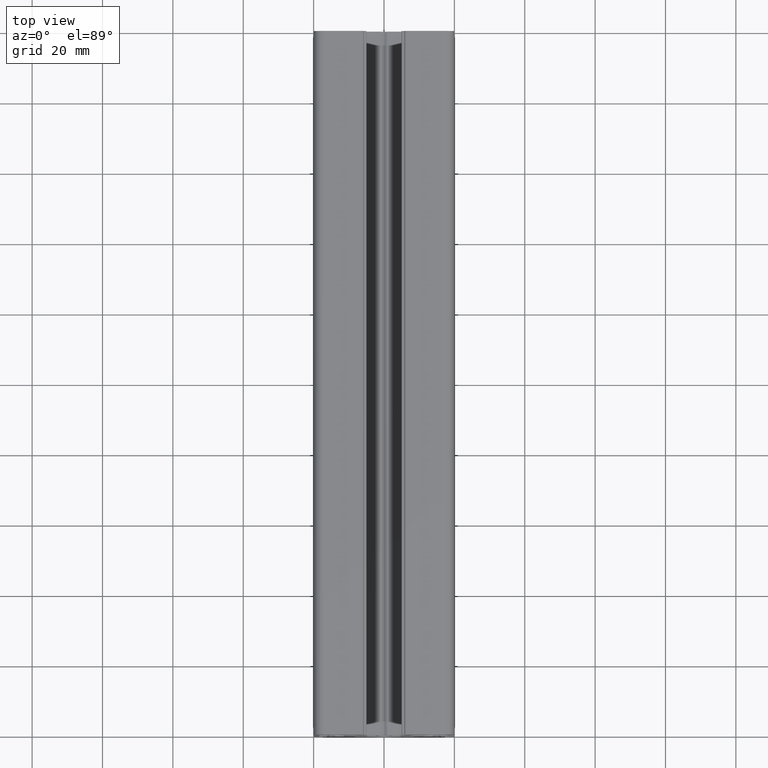
[diagram: clean part render]
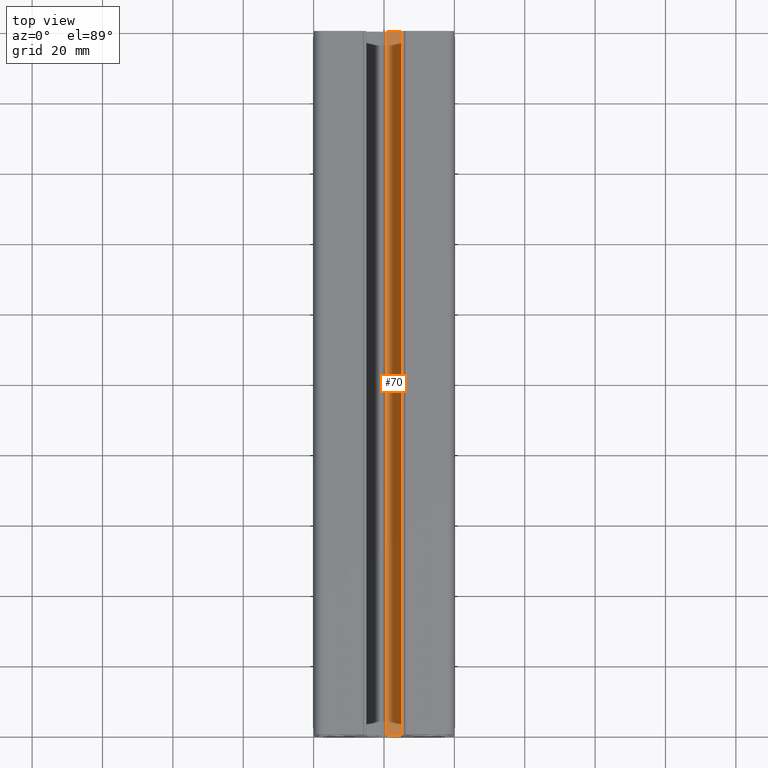
[diagram: same view with one face highlighted and labeled with its STEP entity id]
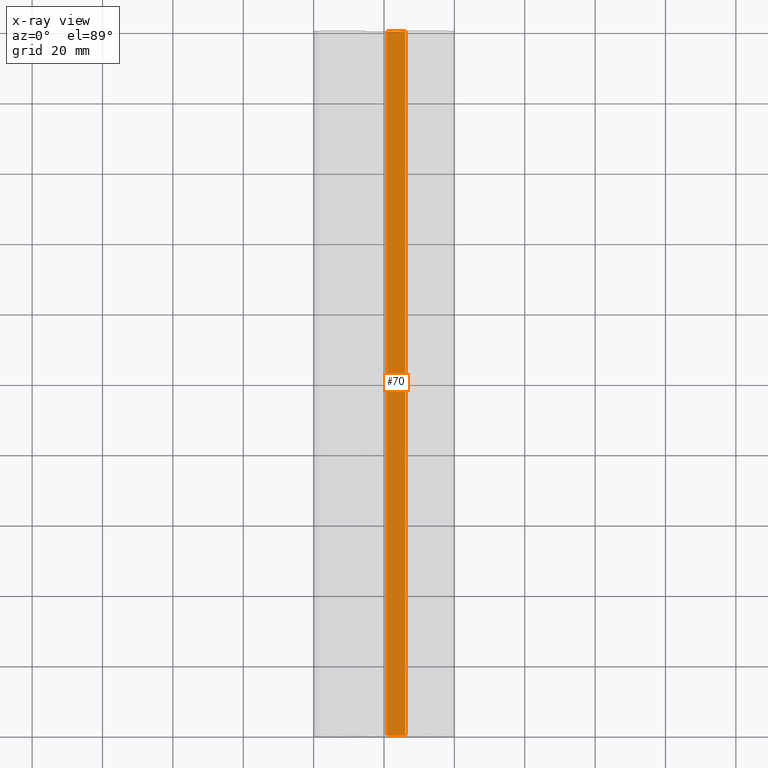
[diagram: x-ray of the same camera — body ghosted, the highlighted face saturated]
A machine part, top view. The second image highlights one B-rep face of the part: STEP entity #70.
The next image is the same camera in x-ray: the body ghosted, the highlighted face saturated — about 0% of this face is hidden behind the body in this view.
In plain terms, the highlighted planar face has unit normal (0, -0, 1).
Its self-contained STEP definition (entity closure, byte-faithful):
#44 = VERTEX_POINT ( 'NONE', #4011 ) ;
#55 = EDGE_CURVE ( 'NONE', #44, #918, #1239, .T. ) ;
#70 = ADVANCED_FACE ( 'NONE', ( #3280 ), #1368, .T. ) ;
#109 = ORIENTED_EDGE ( 'NONE', *, *, #4029, .T. ) ;
#199 = CARTESIAN_POINT ( 'NONE',  ( 2.664535259100380100E-014, 200.0000000000000000, 7.499889978929809700 ) ) ;
#225 = LINE ( 'NONE', #199, #2042 ) ;
#561 = VECTOR ( 'NONE', #5580, 1000.000000000000000 ) ;
#713 = ORIENTED_EDGE ( 'NONE', *, *, #1548, .F. ) ;
#790 = VERTEX_POINT ( 'NONE', #1493 ) ;
#918 = VERTEX_POINT ( 'NONE', #2096 ) ;
#986 = CARTESIAN_POINT ( 'NONE',  ( 0.8660254037846670800, 0.0000000000000000000, 7.499889978929809700 ) ) ;
#1002 = DIRECTION ( 'NONE',  ( 1.000000000000000000, 0.0000000000000000000, -0.0000000000000000000 ) ) ;
#1182 = CARTESIAN_POINT ( 'NONE',  ( 0.8660254037846670800, 0.0000000000000000000, 7.499889978929809700 ) ) ;
#1239 = LINE ( 'NONE', #2702, #4215 ) ;
#1368 = PLANE ( 'NONE',  #2384 ) ;
#1423 = DIRECTION ( 'NONE',  ( 1.000000000000000000, 0.0000000000000000000, -2.127006234543670000E-016 ) ) ;
#1493 = CARTESIAN_POINT ( 'NONE',  ( 0.8660254037846670800, 0.0000000000000000000, 7.499889978929809700 ) ) ;
#1548 = EDGE_CURVE ( 'NONE', #1936, #44, #225, .T. ) ;
#1583 = ORIENTED_EDGE ( 'NONE', *, *, #55, .F. ) ;
#1833 = DIRECTION ( 'NONE',  ( -0.0000000000000000000, -1.000000000000000000, -0.0000000000000000000 ) ) ;
#1864 = DIRECTION ( 'NONE',  ( 2.127006234543670000E-016, -0.0000000000000000000, 1.000000000000000000 ) ) ;
#1936 = VERTEX_POINT ( 'NONE', #3658 ) ;
#2042 = VECTOR ( 'NONE', #1002, 1000.000000000000000 ) ;
#2096 = CARTESIAN_POINT ( 'NONE',  ( 6.085676416530018800, 0.0000000000000000000, 7.499889978929809700 ) ) ;
#2384 = AXIS2_PLACEMENT_3D ( 'NONE', #5272, #1864, #1423 ) ;
#2527 = LINE ( 'NONE', #1182, #561 ) ;
#2702 = CARTESIAN_POINT ( 'NONE',  ( 6.085676416530019700, 0.0000000000000000000, 7.499889978929809700 ) ) ;
#3017 = ORIENTED_EDGE ( 'NONE', *, *, #3226, .T. ) ;
#3226 = EDGE_CURVE ( 'NONE', #790, #918, #2527, .T. ) ;
#3280 = FACE_OUTER_BOUND ( 'NONE', #4935, .T. ) ;
#3588 = DIRECTION ( 'NONE',  ( -0.0000000000000000000, -1.000000000000000000, 0.0000000000000000000 ) ) ;
#3658 = CARTESIAN_POINT ( 'NONE',  ( 0.8660254037846670800, 200.0000000000000000, 7.499889978929809700 ) ) ;
#3940 = VECTOR ( 'NONE', #1833, 1000.000000000000000 ) ;
#4011 = CARTESIAN_POINT ( 'NONE',  ( 6.085676416530019700, 200.0000000000000000, 7.499889978929809700 ) ) ;
#4029 = EDGE_CURVE ( 'NONE', #1936, #790, #4896, .T. ) ;
#4215 = VECTOR ( 'NONE', #3588, 1000.000000000000000 ) ;
#4896 = LINE ( 'NONE', #986, #3940 ) ;
#4935 = EDGE_LOOP ( 'NONE', ( #3017, #1583, #713, #109 ) ) ;
#5272 = CARTESIAN_POINT ( 'NONE',  ( 0.8660254037846670800, 0.0000000000000000000, 7.499889978929809700 ) ) ;
#5580 = DIRECTION ( 'NONE',  ( 1.000000000000000000, 0.0000000000000000000, -2.127006234543670000E-016 ) ) ;